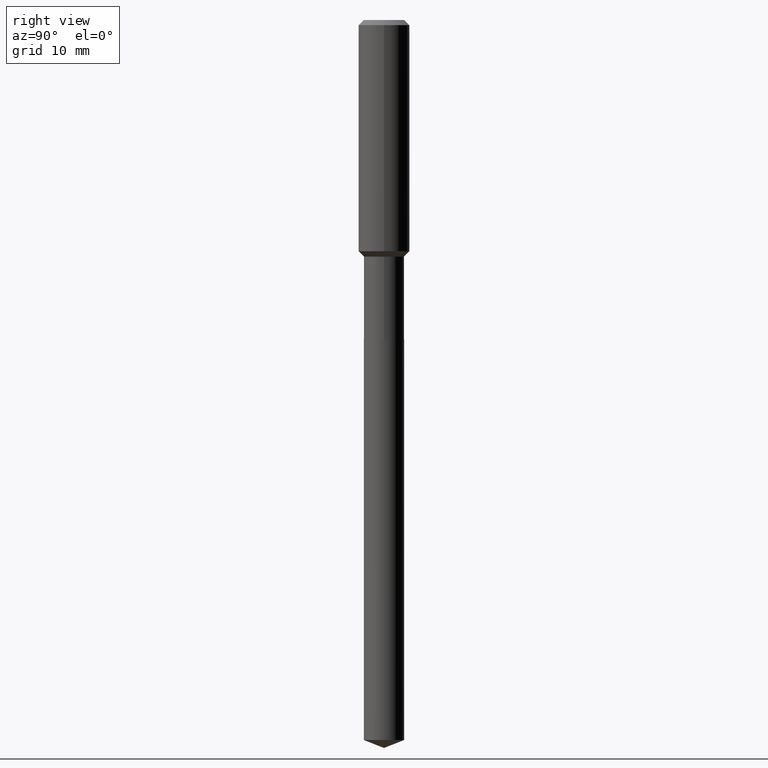
[diagram: clean part render]
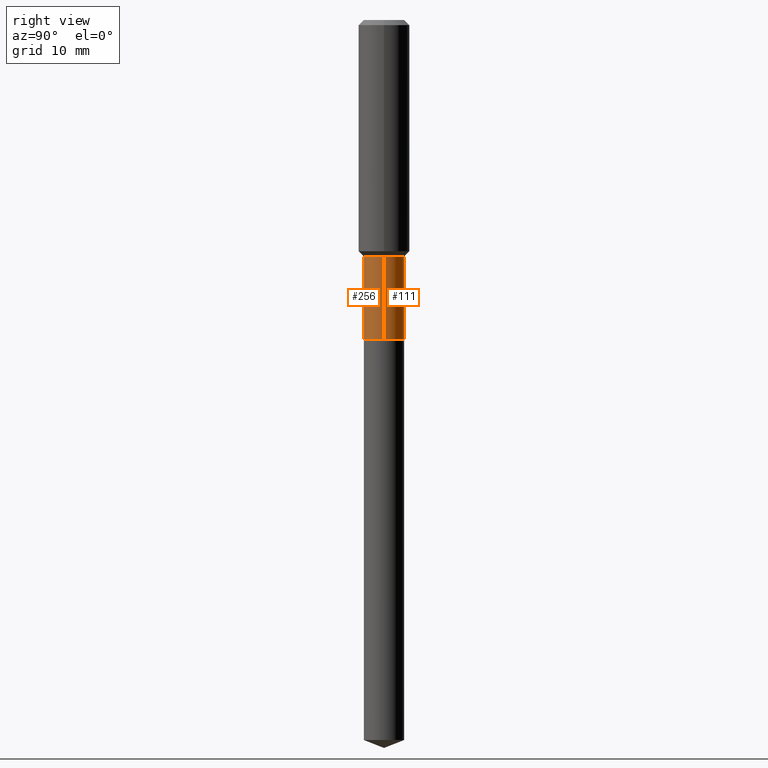
[diagram: same view with one multi-face feature highlighted, each face labeled with its STEP entity id]
A machine part, right view. The highlighted faces form ONE feature: a constant-radius fillet chain: 2 tangent blend faces with common blend radius 3.1496 mm. The faces share edges in the B-rep.
Their STEP definitions:
[1] entity #256 (Cylinder):
#7 = CARTESIAN_POINT ( 'NONE',  ( 0.1239999999999999991, -7.737122646876408317E-15, -1.968000000000000194 ) ) ;
#26 = VECTOR ( 'NONE', #324, 39.37007874015748143 ) ;
#39 = CIRCLE ( 'NONE', #322, 0.1239999999999999297 ) ;
#40 = EDGE_CURVE ( 'NONE', #367, #368, #386, .T. ) ;
#66 = FACE_OUTER_BOUND ( 'NONE', #98, .T. ) ;
#69 = DIRECTION ( 'NONE',  ( 1.000000000000000000, -6.982962677686266711E-15, 0.000000000000000000 ) ) ;
#98 = EDGE_LOOP ( 'NONE', ( #341, #144, #486, #110 ) ) ;
#107 = DIRECTION ( 'NONE',  ( -2.445468806185136877E-29, 3.491481338843145188E-15, 1.000000000000000000 ) ) ;
#108 = CARTESIAN_POINT ( 'NONE',  ( 3.567694441343496008E-29, -5.093722125238265850E-15, -1.458900000000000086 ) ) ;
#110 = ORIENTED_EDGE ( 'NONE', *, *, #268, .F. ) ;
#112 = VERTEX_POINT ( 'NONE', #426 ) ;
#137 = CYLINDRICAL_SURFACE ( 'NONE', #150, 0.1239999999999999575 ) ;
#139 = CARTESIAN_POINT ( 'NONE',  ( -0.1239999999999999297, -5.101405707698264197E-15, -1.458900000000000086 ) ) ;
#144 = ORIENTED_EDGE ( 'NONE', *, *, #284, .T. ) ;
#146 = DIRECTION ( 'NONE',  ( -2.445468806185136597E-29, 3.491481338843145583E-15, 1.000000000000000000 ) ) ;
#150 = AXIS2_PLACEMENT_3D ( 'NONE', #405, #146, #294 ) ;
#157 = AXIS2_PLACEMENT_3D ( 'NONE', #175, #328, #477 ) ;
#159 = CARTESIAN_POINT ( 'NONE',  ( 0.1239999999999999297, -5.959609497271362386E-15, -1.458900000000000086 ) ) ;
#175 = CARTESIAN_POINT ( 'NONE',  ( 4.812682610572349594E-29, -6.871235274843310993E-15, -1.968000000000000194 ) ) ;
#177 = CARTESIAN_POINT ( 'NONE',  ( -0.1239999999999999575, 8.810729923425239283E-16, -6.099479511916081045E-30 ) ) ;
#256 = ADVANCED_FACE ( 'NONE', ( #66 ), #137, .T. ) ;
#265 = DIRECTION ( 'NONE',  ( -2.445468806185136597E-29, 3.491481338843145583E-15, 1.000000000000000000 ) ) ;
#268 = EDGE_CURVE ( 'NONE', #293, #368, #39, .T. ) ;
#284 = EDGE_CURVE ( 'NONE', #112, #367, #314, .T. ) ;
#288 = LINE ( 'NONE', #177, #397 ) ;
#293 = VERTEX_POINT ( 'NONE', #139 ) ;
#294 = DIRECTION ( 'NONE',  ( 1.000000000000000000, -6.982962677686266711E-15, 4.876176775795935793E-29 ) ) ;
#314 = CIRCLE ( 'NONE', #157, 0.1239999999999999991 ) ;
#322 = AXIS2_PLACEMENT_3D ( 'NONE', #108, #265, #69 ) ;
#324 = DIRECTION ( 'NONE',  ( -2.445468806185136877E-29, 3.491481338843145188E-15, 1.000000000000000000 ) ) ;
#328 = DIRECTION ( 'NONE',  ( -2.445468806185136597E-29, 3.491481338843145583E-15, 1.000000000000000000 ) ) ;
#341 = ORIENTED_EDGE ( 'NONE', *, *, #471, .F. ) ;
#356 = CARTESIAN_POINT ( 'NONE',  ( 0.1239999999999999575, -8.658873720330967329E-16, 6.046459201986958533E-30 ) ) ;
#367 = VERTEX_POINT ( 'NONE', #7 ) ;
#368 = VERTEX_POINT ( 'NONE', #159 ) ;
#386 = LINE ( 'NONE', #356, #26 ) ;
#397 = VECTOR ( 'NONE', #107, 39.37007874015748143 ) ;
#405 = CARTESIAN_POINT ( 'NONE',  ( 0.000000000000000000, 0.000000000000000000, 0.000000000000000000 ) ) ;
#426 = CARTESIAN_POINT ( 'NONE',  ( -0.1239999999999999991, -5.101405707698264197E-15, -1.968000000000000194 ) ) ;
#471 = EDGE_CURVE ( 'NONE', #112, #293, #288, .T. ) ;
#477 = DIRECTION ( 'NONE',  ( 1.000000000000000000, -6.982962677686270655E-15, 0.000000000000000000 ) ) ;
#486 = ORIENTED_EDGE ( 'NONE', *, *, #40, .T. ) ;
[2] entity #111 (Cylinder):
#7 = CARTESIAN_POINT ( 'NONE',  ( 0.1239999999999999991, -7.737122646876408317E-15, -1.968000000000000194 ) ) ;
#9 = AXIS2_PLACEMENT_3D ( 'NONE', #43, #272, #190 ) ;
#26 = VECTOR ( 'NONE', #324, 39.37007874015748143 ) ;
#40 = EDGE_CURVE ( 'NONE', #367, #368, #386, .T. ) ;
#43 = CARTESIAN_POINT ( 'NONE',  ( 3.567694441343496008E-29, -5.093722125238265850E-15, -1.458900000000000086 ) ) ;
#45 = AXIS2_PLACEMENT_3D ( 'NONE', #80, #278, #423 ) ;
#77 = ORIENTED_EDGE ( 'NONE', *, *, #40, .F. ) ;
#80 = CARTESIAN_POINT ( 'NONE',  ( 4.812682610572349594E-29, -6.871235274843310993E-15, -1.968000000000000194 ) ) ;
#86 = CIRCLE ( 'NONE', #45, 0.1239999999999999991 ) ;
#89 = FACE_OUTER_BOUND ( 'NONE', #415, .T. ) ;
#95 = EDGE_CURVE ( 'NONE', #367, #112, #86, .T. ) ;
#107 = DIRECTION ( 'NONE',  ( -2.445468806185136877E-29, 3.491481338843145188E-15, 1.000000000000000000 ) ) ;
#111 = ADVANCED_FACE ( 'NONE', ( #89 ), #124, .T. ) ;
#112 = VERTEX_POINT ( 'NONE', #426 ) ;
#124 = CYLINDRICAL_SURFACE ( 'NONE', #130, 0.1239999999999999575 ) ;
#130 = AXIS2_PLACEMENT_3D ( 'NONE', #279, #283, #467 ) ;
#139 = CARTESIAN_POINT ( 'NONE',  ( -0.1239999999999999297, -5.101405707698264197E-15, -1.458900000000000086 ) ) ;
#143 = ORIENTED_EDGE ( 'NONE', *, *, #471, .T. ) ;
#159 = CARTESIAN_POINT ( 'NONE',  ( 0.1239999999999999297, -5.959609497271362386E-15, -1.458900000000000086 ) ) ;
#177 = CARTESIAN_POINT ( 'NONE',  ( -0.1239999999999999575, 8.810729923425239283E-16, -6.099479511916081045E-30 ) ) ;
#190 = DIRECTION ( 'NONE',  ( 1.000000000000000000, -6.982962677686266711E-15, 0.000000000000000000 ) ) ;
#272 = DIRECTION ( 'NONE',  ( -2.445468806185136597E-29, 3.491481338843145583E-15, 1.000000000000000000 ) ) ;
#278 = DIRECTION ( 'NONE',  ( -2.445468806185136597E-29, 3.491481338843145583E-15, 1.000000000000000000 ) ) ;
#279 = CARTESIAN_POINT ( 'NONE',  ( 0.000000000000000000, 0.000000000000000000, 0.000000000000000000 ) ) ;
#283 = DIRECTION ( 'NONE',  ( -2.445468806185136597E-29, 3.491481338843145583E-15, 1.000000000000000000 ) ) ;
#288 = LINE ( 'NONE', #177, #397 ) ;
#293 = VERTEX_POINT ( 'NONE', #139 ) ;
#324 = DIRECTION ( 'NONE',  ( -2.445468806185136877E-29, 3.491481338843145188E-15, 1.000000000000000000 ) ) ;
#337 = ORIENTED_EDGE ( 'NONE', *, *, #95, .T. ) ;
#356 = CARTESIAN_POINT ( 'NONE',  ( 0.1239999999999999575, -8.658873720330967329E-16, 6.046459201986958533E-30 ) ) ;
#367 = VERTEX_POINT ( 'NONE', #7 ) ;
#368 = VERTEX_POINT ( 'NONE', #159 ) ;
#371 = EDGE_CURVE ( 'NONE', #368, #293, #376, .T. ) ;
#376 = CIRCLE ( 'NONE', #9, 0.1239999999999999297 ) ;
#379 = ORIENTED_EDGE ( 'NONE', *, *, #371, .F. ) ;
#386 = LINE ( 'NONE', #356, #26 ) ;
#397 = VECTOR ( 'NONE', #107, 39.37007874015748143 ) ;
#415 = EDGE_LOOP ( 'NONE', ( #337, #143, #379, #77 ) ) ;
#423 = DIRECTION ( 'NONE',  ( 1.000000000000000000, -6.982962677686270655E-15, 0.000000000000000000 ) ) ;
#426 = CARTESIAN_POINT ( 'NONE',  ( -0.1239999999999999991, -5.101405707698264197E-15, -1.968000000000000194 ) ) ;
#467 = DIRECTION ( 'NONE',  ( 1.000000000000000000, -6.982962677686266711E-15, 4.876176775795935793E-29 ) ) ;
#471 = EDGE_CURVE ( 'NONE', #112, #293, #288, .T. ) ;